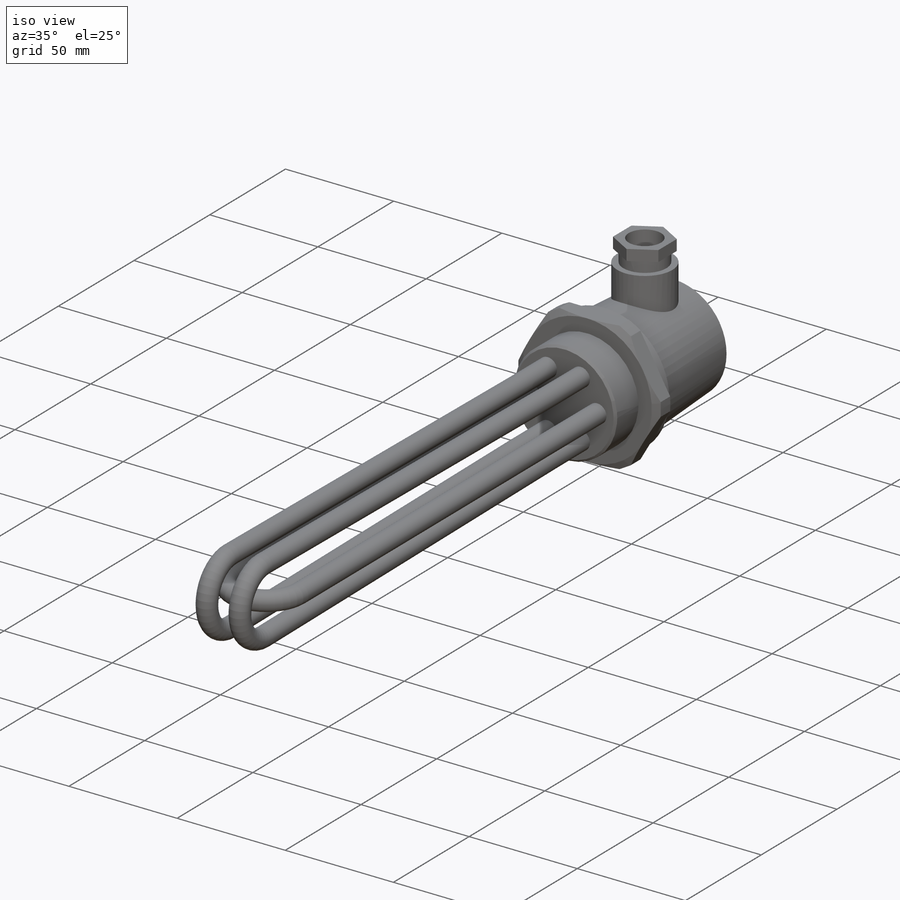
[diagram: iso view]
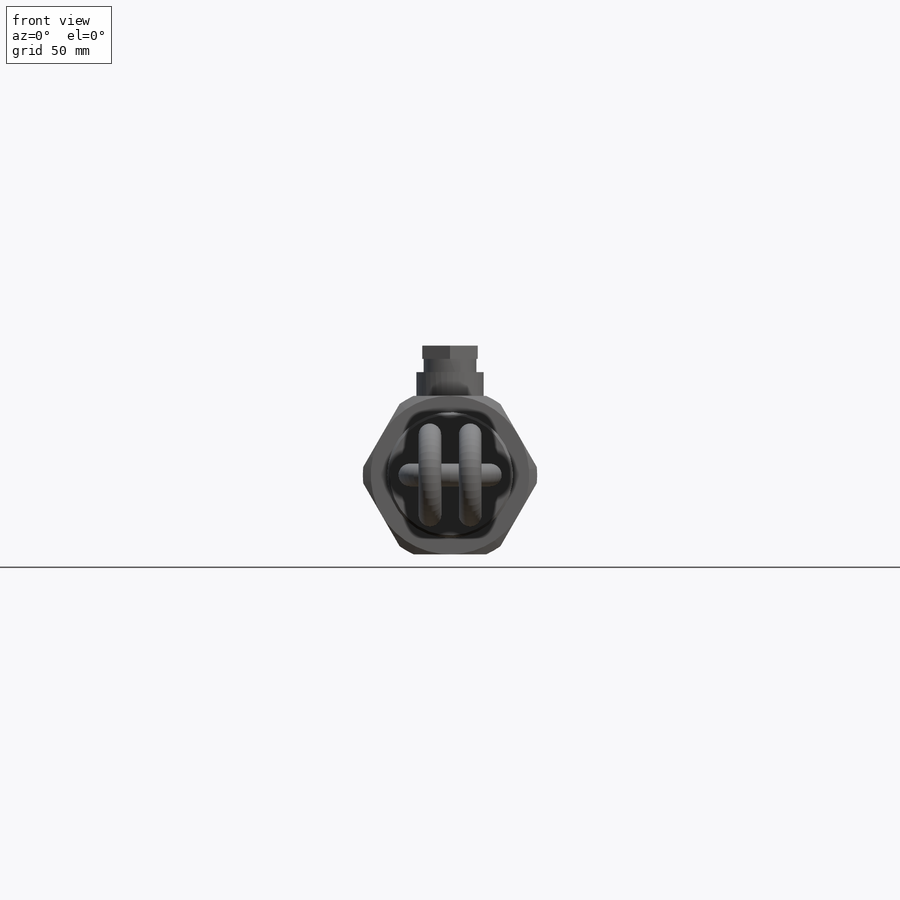
[diagram: front view]
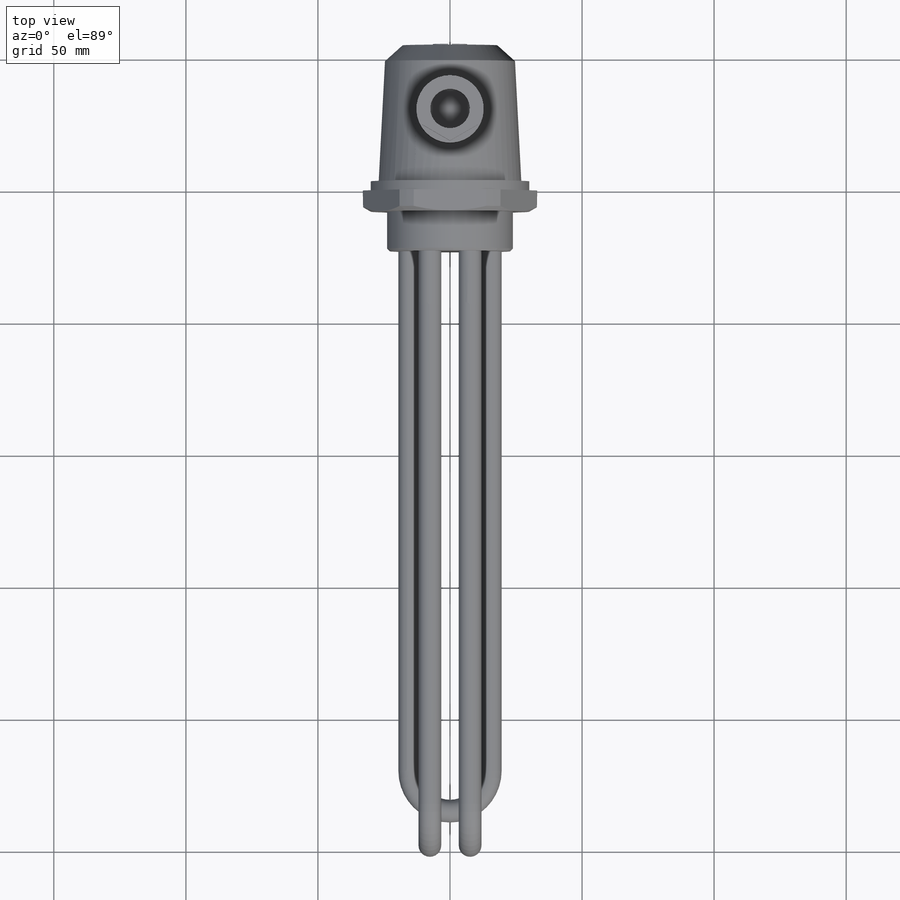
[diagram: top view]
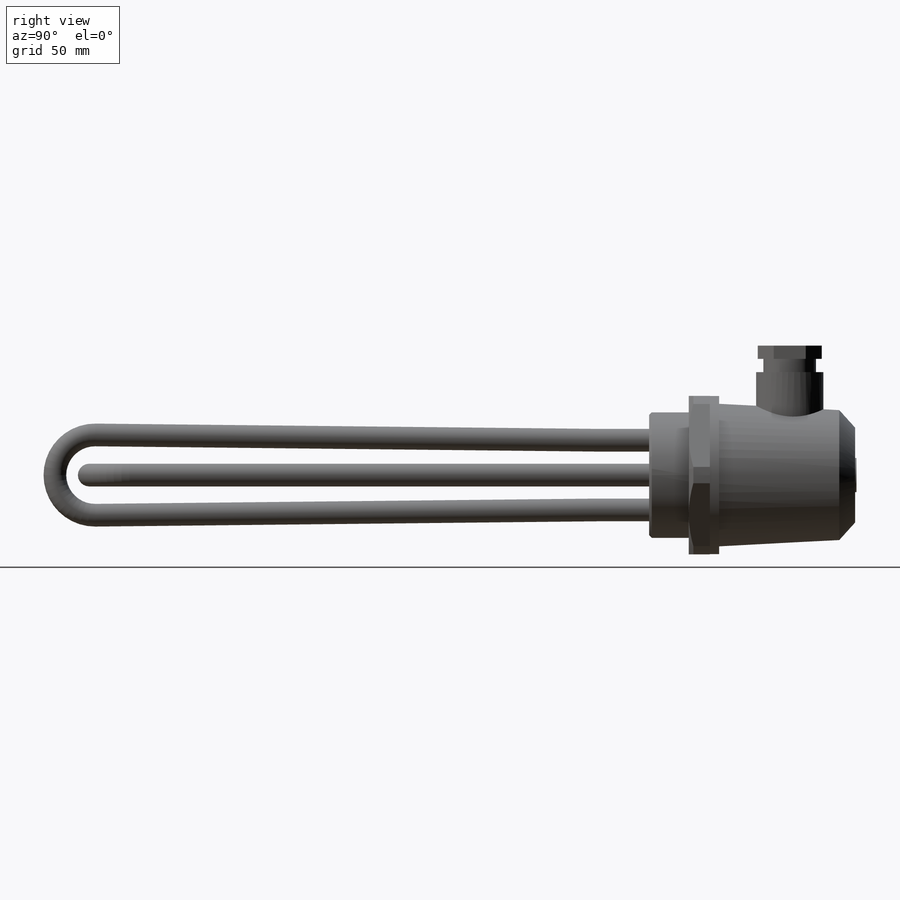
[diagram: right view]
SOLIDWORKS PART (.sldprt)
format: sldprt  version: not decoded by parser v0  size: 503,296 bytes
history: native  units: mm
features: sketch x14, plane x5, extrude x5, chamfer x2, cut_revolve x2, sweep x2, material x1, revolve x1, cut_extrude x1, boolean_combine x1 + 2 further entries (+10 scaffold rows collapsed; 1 parser-record rows omitted)
feature tree (47):
  scaffold x10  (default folders/planes/origin — collapsed)
  material  "Materiál <není určen>"
  "Těla ploch"
  plane  "Horní"
  plane  "Přední"
  plane  "Pravá"
  parser-record x1  (decoder bookkeeping rows leaked as tree rows — omitted from the tree; the rows remain in map.json)
  sketch  "Skica2"  dims[c1.D1=55.0mm c1.D2=3.5mm c1.D3=60.0mm c1.D4=54.0mm c1.D5=51.5mm c2.D5=3.0deg]
  revolve  "Rotovat1"  Angle=360deg
  chamfer  "Zkosení1"  Distance=6mm Angle=45deg
  sketch  "Skica3"  dims[D1=25.5mm D2=14.0mm]
  extrude  "Přidat vysunutím1"  Depth=39mm
  sketch  "Skica4"  dims[D1=21.0mm]
  extrude  "Přidat vysunutím2"  Depth=10mm
  sketch  "Skica5"  dims[D1=15.0mm D2=13.5mm D3=20.0mm D4=5.0mm]
  cut_revolve  "Odebrat rotací1"  Angle=360deg
  sketch  "Skica6"  dims[D1=13.0mm]
  extrude  "Přidat vysunutím3"  Depth=0.5mm
  sketch  "Skica7"  dims[D1=1.4mm]
  cut_extrude  "Odebrat vysunutím1"  Depth=2mm
  sketch  "Skica8"  dims[D1=60.0mm]
  extrude  "Přidat vysunutím4"  Depth=8mm
  sketch  "Skica9"  dims[c1.D1=66.0mm c1.D2=~5.689863mm c2.D2=30.0deg c2.D3=100.0mm]
  cut_revolve  "Odebrat rotací2"  Angle=360deg
  sketch  "Skica10"  dims[D1=47.6mm]
  extrude  "Přidat vysunutím5"  Depth=15mm
  chamfer  "Zkosení2"  Distance=1mm Angle=45deg
  sketch  "Skica11"  dims[c1.D1=8.6mm c1.D3=8.6mm c2.D1=35.0mm c2.D3=35.0mm c2.D2=6.0]
  plane  "Rovina1"
  sketch  "Skica12"  dims[c1.D4=100.0mm c1.D1=2.0mm c1.D2=225.0mm c1.D3=20.0mm c2.D2=225.0mm]
  plane  "Rovina2"
  sketch  "Skica13"  dims[D1=212.0mm]
  sweep  "Táhnout po křivce1"
  sweep  "Táhnout po křivce2"
  sketch  "Skica11<3>"
  sketch  "Skica14"
  "Skica-pole1"
  boolean_combine  "Kombinovat1"
decode coverage: 23 of 28 modeling features carry decoded parameters; 2 rows unclassified (native names shown)
note: ~ marks probable driven/reference dimensions
note: suppression state not decoded; provenance and decode notes live in map.json
